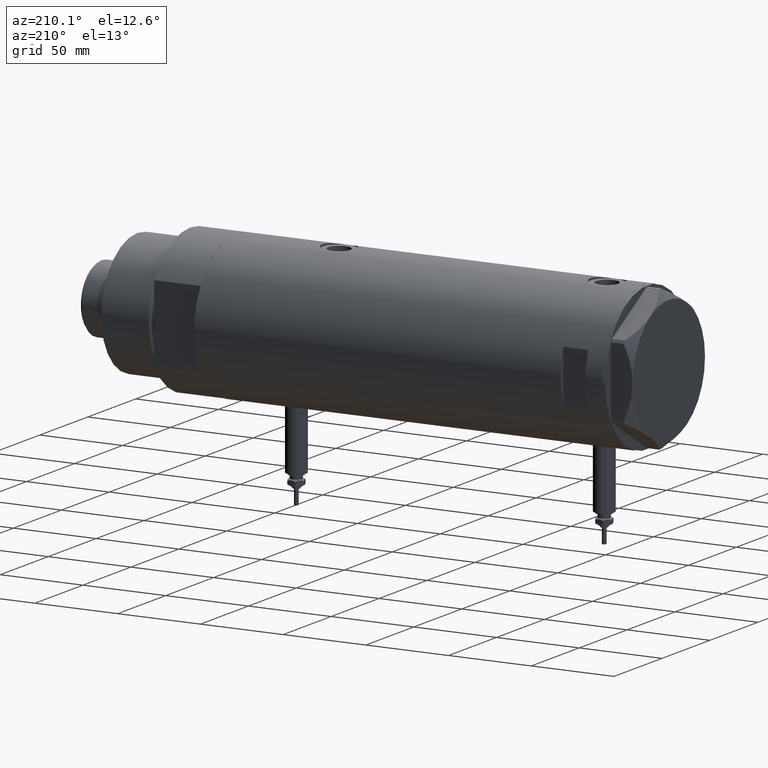
[diagram: clean part render]
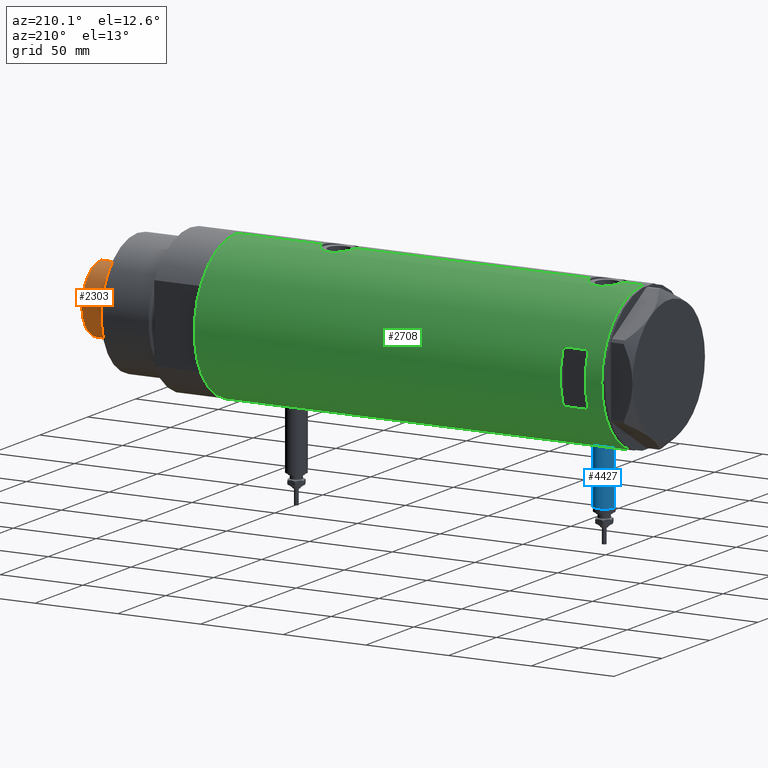
[diagram: same view with three faces highlighted in distinct colors, each labeled with its STEP entity id]
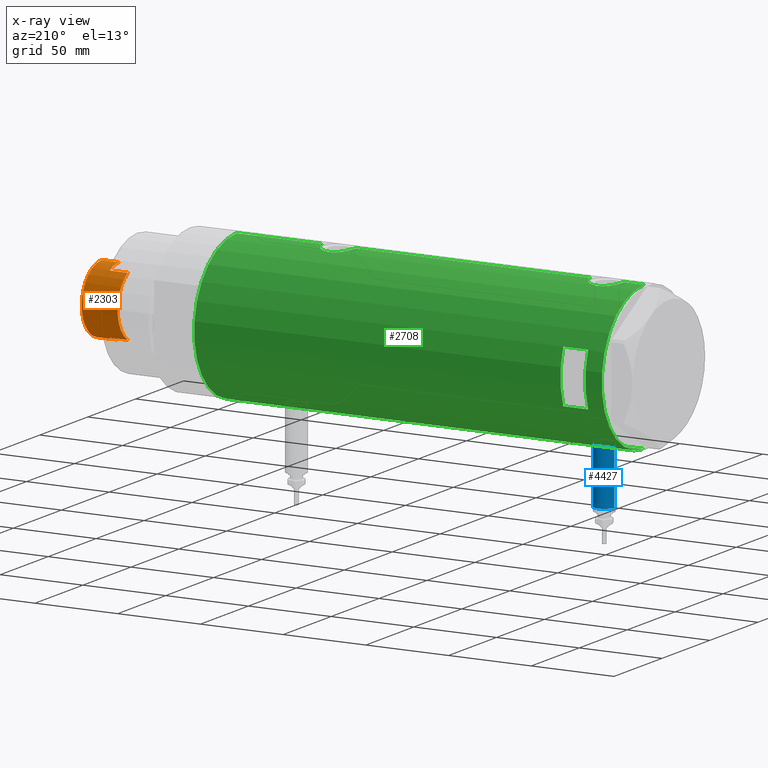
[diagram: x-ray of the same camera — body ghosted, the three highlighted faces saturated]
A machine part, auxiliary view with three faces highlighted in distinct colors.
The next image is the same camera in x-ray (body ghosted, the three faces saturated) — at least one of them is partly hidden behind the body in this view.
Their STEP definitions:

[orange] entity #2303 — the highlighted cylindrical surface (partial cylindrical patch) has radius 20.5 mm, axis along (-1, -0, 0).
#226 = FACE_OUTER_BOUND ( 'NONE', #3237, .T. ) ;
#311 = VERTEX_POINT ( 'NONE', #902 ) ;
#315 = VERTEX_POINT ( 'NONE', #2359 ) ;
#386 = DIRECTION ( 'NONE',  ( 1.000000000000000000, 0.000000000000000000, 0.000000000000000000 ) ) ;
#416 = VECTOR ( 'NONE', #428, 1000.000000000000000 ) ;
#424 = AXIS2_PLACEMENT_3D ( 'NONE', #4688, #3823, #5173 ) ;
#428 = DIRECTION ( 'NONE',  ( -0.000000000000000000, -0.000000000000000000, -1.000000000000000000 ) ) ;
#471 = EDGE_CURVE ( 'NONE', #4297, #4101, #1237, .T. ) ;
#566 = VECTOR ( 'NONE', #3943, 1000.000000000000000 ) ;
#716 = ORIENTED_EDGE ( 'NONE', *, *, #471, .T. ) ;
#853 = EDGE_CURVE ( 'NONE', #4954, #311, #3857, .T. ) ;
#889 = EDGE_CURVE ( 'NONE', #4911, #4297, #4733, .T. ) ;
#902 = CARTESIAN_POINT ( 'NONE',  ( -20.50000000000000000, 0.000000000000000000, 291.3000000000000114 ) ) ;
#1003 = EDGE_CURVE ( 'NONE', #4954, #315, #2392, .T. ) ;
#1036 = ORIENTED_EDGE ( 'NONE', *, *, #1003, .F. ) ;
#1193 = DIRECTION ( 'NONE',  ( 1.000000000000000000, 0.000000000000000000, 0.000000000000000000 ) ) ;
#1237 = LINE ( 'NONE', #3109, #566 ) ;
#1361 = AXIS2_PLACEMENT_3D ( 'NONE', #3376, #4320, #5300 ) ;
#1609 = ORIENTED_EDGE ( 'NONE', *, *, #3963, .F. ) ;
#1768 = CARTESIAN_POINT ( 'NONE',  ( 17.97852886083842705, 9.849999999999997868, 291.3000000000000114 ) ) ;
#1835 = CARTESIAN_POINT ( 'NONE',  ( 20.50000000000000000, 2.510525938252074481E-15, 291.3000000000000114 ) ) ;
#1930 = CIRCLE ( 'NONE', #2919, 20.50000000000000000 ) ;
#2032 = CARTESIAN_POINT ( 'NONE',  ( 17.97852886083842705, 9.849999999999997868, 280.3000000000000114 ) ) ;
#2303 = ADVANCED_FACE ( 'NONE', ( #226 ), #3437, .T. ) ;
#2359 = CARTESIAN_POINT ( 'NONE',  ( -17.97852886083843060, 9.850000000000024514, 280.3000000000000114 ) ) ;
#2392 = LINE ( 'NONE', #5239, #5427 ) ;
#2471 = EDGE_CURVE ( 'NONE', #4101, #4564, #1930, .T. ) ;
#2639 = CARTESIAN_POINT ( 'NONE',  ( 0.000000000000000000, 0.000000000000000000, 291.3000000000000114 ) ) ;
#2702 = CARTESIAN_POINT ( 'NONE',  ( 0.000000000000000000, 0.000000000000000000, 291.3000000000000114 ) ) ;
#2768 = DIRECTION ( 'NONE',  ( 0.000000000000000000, 0.000000000000000000, -1.000000000000000000 ) ) ;
#2919 = AXIS2_PLACEMENT_3D ( 'NONE', #2702, #3088, #1193 ) ;
#3085 = DIRECTION ( 'NONE',  ( 0.000000000000000000, 0.000000000000000000, 1.000000000000000000 ) ) ;
#3088 = DIRECTION ( 'NONE',  ( 0.000000000000000000, 0.000000000000000000, 1.000000000000000000 ) ) ;
#3109 = CARTESIAN_POINT ( 'NONE',  ( 20.50000000000000355, 2.510525938252074481E-15, 291.3000000000000114 ) ) ;
#3237 = EDGE_LOOP ( 'NONE', ( #3803, #716, #3400, #5702, #5886, #1036, #5156, #1609 ) ) ;
#3245 = CARTESIAN_POINT ( 'NONE',  ( 0.000000000000000000, 0.000000000000000000, 301.8999999999999773 ) ) ;
#3272 = LINE ( 'NONE', #4668, #416 ) ;
#3376 = CARTESIAN_POINT ( 'NONE',  ( 0.000000000000000000, 0.000000000000000000, 291.3000000000000114 ) ) ;
#3400 = ORIENTED_EDGE ( 'NONE', *, *, #2471, .T. ) ;
#3437 = CYLINDRICAL_SURFACE ( 'NONE', #1361, 20.50000000000000355 ) ;
#3468 = AXIS2_PLACEMENT_3D ( 'NONE', #3245, #2768, #386 ) ;
#3722 = DIRECTION ( 'NONE',  ( -0.000000000000000000, -0.000000000000000000, -1.000000000000000000 ) ) ;
#3803 = ORIENTED_EDGE ( 'NONE', *, *, #889, .T. ) ;
#3823 = DIRECTION ( 'NONE',  ( 0.000000000000000000, 0.000000000000000000, 1.000000000000000000 ) ) ;
#3857 = CIRCLE ( 'NONE', #5798, 20.50000000000000000 ) ;
#3943 = DIRECTION ( 'NONE',  ( -0.000000000000000000, -0.000000000000000000, -1.000000000000000000 ) ) ;
#3963 = EDGE_CURVE ( 'NONE', #4911, #311, #3272, .T. ) ;
#4101 = VERTEX_POINT ( 'NONE', #1835 ) ;
#4297 = VERTEX_POINT ( 'NONE', #5422 ) ;
#4320 = DIRECTION ( 'NONE',  ( -0.000000000000000000, -0.000000000000000000, -1.000000000000000000 ) ) ;
#4548 = EDGE_CURVE ( 'NONE', #5786, #315, #4765, .T. ) ;
#4564 = VERTEX_POINT ( 'NONE', #5682 ) ;
#4668 = CARTESIAN_POINT ( 'NONE',  ( -20.50000000000000355, 0.000000000000000000, 291.3000000000000114 ) ) ;
#4688 = CARTESIAN_POINT ( 'NONE',  ( 0.000000000000000000, 0.000000000000000000, 280.3000000000000114 ) ) ;
#4733 = CIRCLE ( 'NONE', #3468, 20.50000000000000355 ) ;
#4761 = VECTOR ( 'NONE', #3722, 1000.000000000000000 ) ;
#4765 = CIRCLE ( 'NONE', #424, 20.50000000000001776 ) ;
#4779 = DIRECTION ( 'NONE',  ( -0.000000000000000000, -0.000000000000000000, -1.000000000000000000 ) ) ;
#4805 = DIRECTION ( 'NONE',  ( 1.000000000000000000, 0.000000000000000000, 0.000000000000000000 ) ) ;
#4911 = VERTEX_POINT ( 'NONE', #5004 ) ;
#4954 = VERTEX_POINT ( 'NONE', #5854 ) ;
#5004 = CARTESIAN_POINT ( 'NONE',  ( -20.50000000000000355, 0.000000000000000000, 301.8999999999999773 ) ) ;
#5156 = ORIENTED_EDGE ( 'NONE', *, *, #853, .T. ) ;
#5173 = DIRECTION ( 'NONE',  ( 1.000000000000000000, 0.000000000000000000, 0.000000000000000000 ) ) ;
#5239 = CARTESIAN_POINT ( 'NONE',  ( -17.97852886083842705, 9.849999999999997868, 291.3000000000000114 ) ) ;
#5300 = DIRECTION ( 'NONE',  ( -1.000000000000000000, 0.000000000000000000, 0.000000000000000000 ) ) ;
#5327 = EDGE_CURVE ( 'NONE', #4564, #5786, #5600, .T. ) ;
#5422 = CARTESIAN_POINT ( 'NONE',  ( 20.50000000000000355, 2.510525938252074481E-15, 301.8999999999999773 ) ) ;
#5427 = VECTOR ( 'NONE', #4779, 1000.000000000000000 ) ;
#5600 = LINE ( 'NONE', #1768, #4761 ) ;
#5682 = CARTESIAN_POINT ( 'NONE',  ( 17.97852886083842705, 9.849999999999997868, 291.3000000000000114 ) ) ;
#5702 = ORIENTED_EDGE ( 'NONE', *, *, #5327, .T. ) ;
#5786 = VERTEX_POINT ( 'NONE', #2032 ) ;
#5798 = AXIS2_PLACEMENT_3D ( 'NONE', #2639, #3085, #4805 ) ;
#5854 = CARTESIAN_POINT ( 'NONE',  ( -17.97852886083842705, 9.849999999999997868, 291.3000000000000114 ) ) ;
#5886 = ORIENTED_EDGE ( 'NONE', *, *, #4548, .T. ) ;

[blue] entity #4427 — the highlighted cylindrical surface (edge-blend (fillet) strip) has radius 6 mm, axis along (0, 0, 1).
#6 = CARTESIAN_POINT ( 'NONE',  ( -77.50000000000000000, 7.347880794884101001E-16, 105.2000000000000028 ) ) ;
#13 = CYLINDRICAL_SURFACE ( 'NONE', #5262, 5.999999999999991118 ) ;
#154 = VERTEX_POINT ( 'NONE', #4478 ) ;
#399 = EDGE_CURVE ( 'NONE', #154, #1180, #4311, .T. ) ;
#412 = CARTESIAN_POINT ( 'NONE',  ( -42.79999999999999716, 0.000000000000000000, 93.20000000000001705 ) ) ;
#506 = CIRCLE ( 'NONE', #3308, 5.999999999999991118 ) ;
#543 = VERTEX_POINT ( 'NONE', #6 ) ;
#1100 = CARTESIAN_POINT ( 'NONE',  ( -77.50000000000000000, 0.000000000000000000, 99.20000000000001705 ) ) ;
#1180 = VERTEX_POINT ( 'NONE', #412 ) ;
#1339 = FACE_OUTER_BOUND ( 'NONE', #4435, .T. ) ;
#1420 = EDGE_CURVE ( 'NONE', #3070, #1180, #5807, .T. ) ;
#1427 = VECTOR ( 'NONE', #1543, 1000.000000000000000 ) ;
#1543 = DIRECTION ( 'NONE',  ( 1.000000000000000000, -0.000000000000000000, -0.000000000000000000 ) ) ;
#1556 = DIRECTION ( 'NONE',  ( -1.000000000000000000, 0.000000000000000000, 0.000000000000000000 ) ) ;
#1858 = CARTESIAN_POINT ( 'NONE',  ( -77.50000000000000000, 0.000000000000000000, 99.20000000000001705 ) ) ;
#2063 = VECTOR ( 'NONE', #3668, 1000.000000000000000 ) ;
#2337 = CARTESIAN_POINT ( 'NONE',  ( -77.50000000000000000, 7.347880794884104945E-16, 105.2000000000000028 ) ) ;
#2667 = CARTESIAN_POINT ( 'NONE',  ( -42.79999999999999716, 0.000000000000000000, 99.20000000000001705 ) ) ;
#3052 = DIRECTION ( 'NONE',  ( -1.000000000000000000, 0.000000000000000000, 0.000000000000000000 ) ) ;
#3070 = VERTEX_POINT ( 'NONE', #4327 ) ;
#3308 = AXIS2_PLACEMENT_3D ( 'NONE', #1100, #1556, #3412 ) ;
#3412 = DIRECTION ( 'NONE',  ( 0.000000000000000000, 0.000000000000000000, 1.000000000000000000 ) ) ;
#3426 = CARTESIAN_POINT ( 'NONE',  ( -77.50000000000000000, 0.000000000000000000, 93.20000000000001705 ) ) ;
#3555 = DIRECTION ( 'NONE',  ( 0.000000000000000000, 0.000000000000000000, 1.000000000000000000 ) ) ;
#3633 = EDGE_CURVE ( 'NONE', #543, #154, #506, .T. ) ;
#3661 = ORIENTED_EDGE ( 'NONE', *, *, #5015, .T. ) ;
#3668 = DIRECTION ( 'NONE',  ( 1.000000000000000000, -0.000000000000000000, -0.000000000000000000 ) ) ;
#3687 = DIRECTION ( 'NONE',  ( 1.000000000000000000, -0.000000000000000000, -0.000000000000000000 ) ) ;
#3750 = ORIENTED_EDGE ( 'NONE', *, *, #399, .F. ) ;
#3767 = AXIS2_PLACEMENT_3D ( 'NONE', #2667, #3052, #3555 ) ;
#3876 = ORIENTED_EDGE ( 'NONE', *, *, #1420, .T. ) ;
#4311 = LINE ( 'NONE', #3426, #1427 ) ;
#4327 = CARTESIAN_POINT ( 'NONE',  ( -42.79999999999999716, 7.347880794884101001E-16, 105.2000000000000028 ) ) ;
#4427 = ADVANCED_FACE ( 'NONE', ( #1339 ), #13, .T. ) ;
#4435 = EDGE_LOOP ( 'NONE', ( #5573, #3661, #3876, #3750 ) ) ;
#4478 = CARTESIAN_POINT ( 'NONE',  ( -77.50000000000000000, 0.000000000000000000, 93.20000000000001705 ) ) ;
#4537 = DIRECTION ( 'NONE',  ( 0.000000000000000000, 0.000000000000000000, -1.000000000000000000 ) ) ;
#4617 = LINE ( 'NONE', #2337, #2063 ) ;
#5015 = EDGE_CURVE ( 'NONE', #543, #3070, #4617, .T. ) ;
#5262 = AXIS2_PLACEMENT_3D ( 'NONE', #1858, #3687, #4537 ) ;
#5573 = ORIENTED_EDGE ( 'NONE', *, *, #3633, .F. ) ;
#5807 = CIRCLE ( 'NONE', #3767, 5.999999999999991118 ) ;

[green] entity #2708 — the highlighted cylindrical surface (partial cylindrical patch) has radius 44 mm, axis along (-1, -0, 0).
#15 = CARTESIAN_POINT ( 'NONE',  ( 43.04663170950395568, 9.110642017076084898, -65.23547502190393743 ) ) ;
#37 = CARTESIAN_POINT ( 'NONE',  ( 43.27871541412904577, 7.937063204555986573, 106.9917499724603118 ) ) ;
#56 = CARTESIAN_POINT ( 'NONE',  ( 15.96871942267132027, 40.99999999999999289, 98.19999999999998863 ) ) ;
#153 = EDGE_CURVE ( 'NONE', #5284, #2802, #3946, .T. ) ;
#165 = CARTESIAN_POINT ( 'NONE',  ( -43.55963022497232373, 6.210088036293395675, -86.08353836982578855 ) ) ;
#199 = CARTESIAN_POINT ( 'NONE',  ( -43.62981559643959883, 5.696090409300652802, -89.48051365414525549 ) ) ;
#209 = DIRECTION ( 'NONE',  ( 1.000000000000000000, 0.000000000000000000, 0.000000000000000000 ) ) ;
#224 = CARTESIAN_POINT ( 'NONE',  ( 43.27822890220282659, 7.945655169171512711, -67.20725383289290278 ) ) ;
#232 = CARTESIAN_POINT ( 'NONE',  ( -43.58221825186232223, 6.049526113783018744, -88.52262970817959342 ) ) ;
#250 = CARTESIAN_POINT ( 'NONE',  ( -43.83593455218809254, 3.811409182021277431, 104.1701492770349944 ) ) ;
#262 = CARTESIAN_POINT ( 'NONE',  ( -43.88968326835894374, 3.132363423941621594, -81.47620767643522299 ) ) ;
#282 = CARTESIAN_POINT ( 'NONE',  ( 43.98503110884232825, 1.314607393679875447, -71.03470984345554484 ) ) ;
#303 = VERTEX_POINT ( 'NONE', #3244 ) ;
#310 = B_SPLINE_CURVE_WITH_KNOTS ( 'NONE', 3,
 ( #794, #3977, #5383, #1208, #3074, #4916, #2165, #4009, #1693, #2662, #5111, #4532, #4195, #1365, #5992, #371, #4110, #5928, #2229, #826, #5481, #493, #5016, #4560, #1756, #3622, #944, #855, #2690, #1304, #4070, #3172, #1396, #4600, #37, #441, #1272, #2717, #2752, #3145, #409, #2263, #2294, #1818, #1850, #5962, #4138, #1792, #3650, #5508 ),
 .UNSPECIFIED., .F., .F.,
 ( 4, 2, 2, 2, 2, 2, 2, 2, 2, 2, 2, 2, 2, 2, 2, 2, 2, 2, 2, 2, 2, 2, 2, 2, 4 ),
 ( 2.058272752699468799E-18, 0.001960456513248896686, 0.002940684769873340258, 0.003920913026497782963, 0.005881369539746685721, 0.006861597796371134497, 0.007841826052995583274, 0.009802282566244484296, 0.01078251082286893481, 0.01176273907949338358, 0.01274296733611783236, 0.01372319559274228114, 0.01568365210599118043, 0.01764410861924008145, 0.01960456513248897553, 0.02058479338911340870, 0.02156502164573783492, 0.02254524990236226462, 0.02352547815898669778, 0.02548593467223555370, 0.02646616292885998686, 0.02744639118548441656, 0.02940684769873326901, 0.03038707595535769523, 0.03136730421198211799 ),
 .UNSPECIFIED. ) ;
#314 = EDGE_CURVE ( 'NONE', #2802, #4871, #2767, .T. ) ;
#316 = CARTESIAN_POINT ( 'NONE',  ( -43.97181775256600389, 1.624866278047415236, 93.15107081614905837 ) ) ;
#318 = CARTESIAN_POINT ( 'NONE',  ( 43.77939001959706644, 4.442287752090380515, -70.08306177559164496 ) ) ;
#348 = CARTESIAN_POINT ( 'NONE',  ( -43.67867890111967455, 5.309046579850785541, 95.89577220923976597 ) ) ;
#371 = CARTESIAN_POINT ( 'NONE',  ( 43.17277162440353777, 8.493905080221257009, 95.61212964891504384 ) ) ;
#409 = CARTESIAN_POINT ( 'NONE',  ( 43.71454618729809027, 5.012329428678966359, 109.5593697405831080 ) ) ;
#421 = CARTESIAN_POINT ( 'NONE',  ( 42.92624534982631701, 9.661626915142809580, -63.70008004144708735 ) ) ;
#441 = CARTESIAN_POINT ( 'NONE',  ( 43.35257020184193522, 7.523219862841655114, 107.4960255408414014 ) ) ;
#493 = CARTESIAN_POINT ( 'NONE',  ( 42.92624534982632412, 9.661626915142806027, 98.29991995855294817 ) ) ;
#503 = DIRECTION ( 'NONE',  ( 0.000000000000000000, 0.000000000000000000, 1.000000000000000000 ) ) ;
#525 = DIRECTION ( 'NONE',  ( 1.000000000000000000, -8.881784197001252323E-16, 0.000000000000000000 ) ) ;
#542 = EDGE_CURVE ( 'NONE', #3205, #2965, #1367, .T. ) ;
#567 = CARTESIAN_POINT ( 'NONE',  ( -44.00000000000000000, 5.388445781982983516E-15, -93.15000000000000568 ) ) ;
#627 = CARTESIAN_POINT ( 'NONE',  ( -44.00000000000000000, 4.742402805755500961E-16, -80.65000000000000568 ) ) ;
#650 = EDGE_CURVE ( 'NONE', #3060, #4871, #3952, .T. ) ;
#654 = CARTESIAN_POINT ( 'NONE',  ( -43.97068415157985299, 1.617901284326947575, -80.85954871699956925 ) ) ;
#687 = CARTESIAN_POINT ( 'NONE',  ( -43.67867890111967455, 5.309046579850785541, -90.20422779076022834 ) ) ;
#709 = CARTESIAN_POINT ( 'NONE',  ( -43.58362292239462477, 6.039157555656595733, 100.8226357844804113 ) ) ;
#722 = CARTESIAN_POINT ( 'NONE',  ( -44.00000000000000711, 0.4081702738789186879, -93.15000000000003411 ) ) ;
#736 = CARTESIAN_POINT ( 'NONE',  ( -43.91315028150560096, 2.769134003554746482, 93.59317380624592886 ) ) ;
#739 = CARTESIAN_POINT ( 'NONE',  ( 44.00000000000001421, 0.6630566900259821095, -71.10000000000000853 ) ) ;
#761 = CARTESIAN_POINT ( 'NONE',  ( 44.00000000000000000, 0.000000000000000000, 123.2000000000000028 ) ) ;
#768 = CARTESIAN_POINT ( 'NONE',  ( -43.71938389712227746, 4.966728892888062852, 103.0161445234087125 ) ) ;
#771 = CARTESIAN_POINT ( 'NONE',  ( 0.000000000000000000, 0.000000000000000000, -123.2000000000000028 ) ) ;
#786 = LINE ( 'NONE', #1711, #4758 ) ;
#794 = CARTESIAN_POINT ( 'NONE',  ( 44.00000000000000000, -2.119006702872526837E-15, 90.90000000000000568 ) ) ;
#826 = CARTESIAN_POINT ( 'NONE',  ( 42.99303682946561622, 9.360292926890508625, 97.36575779792795515 ) ) ;
#833 = CARTESIAN_POINT ( 'NONE',  ( 43.46520118248734121, 6.843279251446917399, -68.39898327212166862 ) ) ;
#834 = DIRECTION ( 'NONE',  ( 1.000000000000000000, 0.000000000000000000, 0.000000000000000000 ) ) ;
#855 = CARTESIAN_POINT ( 'NONE',  ( 42.92259096922160921, 9.678247830257125983, 103.5000599302879607 ) ) ;
#858 = ORIENTED_EDGE ( 'NONE', *, *, #542, .F. ) ;
#863 = CARTESIAN_POINT ( 'NONE',  ( 42.90786968859021044, 9.742642423712169375, -63.37802296547128122 ) ) ;
#900 = CARTESIAN_POINT ( 'NONE',  ( 43.07641822757288708, 8.969229373860574839, -56.66603764209828853 ) ) ;
#930 = CARTESIAN_POINT ( 'NONE',  ( 43.92756755766649235, 2.604528169608125499, -51.42286588097656619 ) ) ;
#944 = CARTESIAN_POINT ( 'NONE',  ( 42.86396777580257833, 9.934664719553396139, 102.2157619902652073 ) ) ;
#952 = CARTESIAN_POINT ( 'NONE',  ( 43.88561577393361546, 3.228056721358716796, -51.61278334272175528 ) ) ;
#979 = CARTESIAN_POINT ( 'NONE',  ( 42.84863276153905787, 9.999733523508368194, -61.75869904750779682 ) ) ;
#1062 = LINE ( 'NONE', #4257, #2548 ) ;
#1102 = CARTESIAN_POINT ( 'NONE',  ( -43.66555354895123742, 5.415612800338316823, -83.77343642822442860 ) ) ;
#1115 = CARTESIAN_POINT ( 'NONE',  ( -43.97754480947185129, 1.419697478855583617, 105.2900327605207167 ) ) ;
#1126 = CARTESIAN_POINT ( 'NONE',  ( -44.00000000000000000, 0.4135148353567997814, -80.65000000000000568 ) ) ;
#1160 = CARTESIAN_POINT ( 'NONE',  ( -43.97181775256598257, 1.624866278047412571, -92.94892918385093594 ) ) ;
#1167 = AXIS2_PLACEMENT_3D ( 'NONE', #2842, #4687, #525 ) ;
#1175 = CARTESIAN_POINT ( 'NONE',  ( -44.00000000000000000, 5.388445916248352830E-15, -123.2000000000000028 ) ) ;
#1185 = CARTESIAN_POINT ( 'NONE',  ( -43.80687348212602217, 4.128385987736833407, 94.48951256689039724 ) ) ;
#1199 = CARTESIAN_POINT ( 'NONE',  ( -43.80687348212602217, 4.128385987736835183, -91.61048743310965392 ) ) ;
#1208 = CARTESIAN_POINT ( 'NONE',  ( 43.94229162222109863, 2.275476993733910103, 91.15685535777693360 ) ) ;
#1214 = CARTESIAN_POINT ( 'NONE',  ( -43.74805001749254529, 4.711035428619386956, 95.07223935874202425 ) ) ;
#1231 = CARTESIAN_POINT ( 'NONE',  ( 44.00000000000000000, -3.917167710965456221E-21, -51.10000000000000853 ) ) ;
#1233 = EDGE_CURVE ( 'NONE', #5977, #2999, #2064, .T. ) ;
#1243 = CARTESIAN_POINT ( 'NONE',  ( -44.00000000000000000, 5.388445781982983516E-15, 92.95000000000000284 ) ) ;
#1262 = DIRECTION ( 'NONE',  ( 0.000000000000000000, 0.000000000000000000, 1.000000000000000000 ) ) ;
#1272 = CARTESIAN_POINT ( 'NONE',  ( 43.39051256276904667, 7.301963662770313945, 107.7402446821294433 ) ) ;
#1304 = CARTESIAN_POINT ( 'NONE',  ( 43.04652664061921286, 9.111152824375427173, 105.0345800921459016 ) ) ;
#1341 = CARTESIAN_POINT ( 'NONE',  ( 43.13962074468733476, 8.660138848900679420, -56.08910258836065310 ) ) ;
#1365 = CARTESIAN_POINT ( 'NONE',  ( 43.35294442506074830, 7.532526048221051873, 94.29064585508892549 ) ) ;
#1367 = LINE ( 'NONE', #4562, #5314 ) ;
#1377 = CARTESIAN_POINT ( 'NONE',  ( 44.00000000000000000, -3.917167710965456221E-21, -51.10000000000000853 ) ) ;
#1396 = CARTESIAN_POINT ( 'NONE',  ( 43.17306590853067405, 8.492365194390515626, 106.1901253269346057 ) ) ;
#1406 = CARTESIAN_POINT ( 'NONE',  ( 43.80640706382534688, 4.134078575915398623, -51.98867178437912884 ) ) ;
#1457 = AXIS2_PLACEMENT_3D ( 'NONE', #1941, #2874, #2409 ) ;
#1494 = ORIENTED_EDGE ( 'NONE', *, *, #4161, .T. ) ;
#1515 = VERTEX_POINT ( 'NONE', #1231 ) ;
#1589 = CARTESIAN_POINT ( 'NONE',  ( -43.66575107734169592, 5.414026674167576658, -90.02935088037700950 ) ) ;
#1604 = CARTESIAN_POINT ( 'NONE',  ( -43.62981559643959883, 5.696090409300652802, 96.61948634585476725 ) ) ;
#1616 = CARTESIAN_POINT ( 'NONE',  ( -43.91315028150560096, 2.769134003554747814, -92.50682619375403704 ) ) ;
#1638 = CARTESIAN_POINT ( 'NONE',  ( -44.00000000000000711, 0.4135148353567996149, 105.4500000000000028 ) ) ;
#1671 = CARTESIAN_POINT ( 'NONE',  ( -43.61859254253774054, 5.782454868881351295, 101.5978640089446827 ) ) ;
#1685 = CARTESIAN_POINT ( 'NONE',  ( -15.96871942267131672, 40.99999999999999289, 98.19999999999998863 ) ) ;
#1686 = B_SPLINE_CURVE_WITH_KNOTS ( 'NONE', 3,
 ( #3055, #739, #282, #4862, #2139, #5841, #4477, #318, #5902, #3592, #5454, #4994, #833, #2696, #224, #2078, #3923, #5059, #15, #1860, #4081, #421, #863, #4148, #979, #2358, #2302, #3241, #4204, #5094, #900, #1341, #5550, #1801, #2726, #6001, #3181, #2328, #3659, #4118, #3289, #2765, #1406, #952, #930, #2274, #5516, #2817, #3211, #1377 ),
 .UNSPECIFIED., .F., .F.,
 ( 4, 2, 2, 2, 2, 2, 2, 2, 2, 2, 2, 2, 2, 2, 2, 2, 2, 2, 2, 2, 2, 2, 2, 2, 4 ),
 ( 1.692956015708611541E-18, 0.001960456513248875435, 0.002940684769873316406, 0.003920913026497757810, 0.005881369539746623271, 0.006861597796371055567, 0.007841826052995486129, 0.009802282566244380213, 0.01078251082286882552, 0.01176273907949326736, 0.01274296733611771093, 0.01372319559274215450, 0.01568365210599102083, 0.01764410861923988716, 0.01960456513248875349, 0.02058479338911319706, 0.02156502164573764410, 0.02254524990236208420, 0.02352547815898652778, 0.02548593467223542880, 0.02646616292885988278, 0.02744639118548432982, 0.02940684769873323431, 0.03038707595535768483, 0.03136730421198213187 ),
 .UNSPECIFIED. ) ;
#1693 = CARTESIAN_POINT ( 'NONE',  ( 43.71659050864931828, 5.015880325000606099, 92.22433174036179082 ) ) ;
#1711 = CARTESIAN_POINT ( 'NONE',  ( 44.00000000000000000, 0.000000000000000000, -123.2000000000000028 ) ) ;
#1756 = CARTESIAN_POINT ( 'NONE',  ( 42.84863276153906497, 9.999733523508362865, 100.2413009524922529 ) ) ;
#1757 = CIRCLE ( 'NONE', #1167, 44.00000000000000000 ) ;
#1790 = ORIENTED_EDGE ( 'NONE', *, *, #4269, .T. ) ;
#1792 = CARTESIAN_POINT ( 'NONE',  ( 43.99635668041006653, 0.6544833911834598839, 110.8840070847753481 ) ) ;
#1801 = CARTESIAN_POINT ( 'NONE',  ( 43.24261242176996234, 8.130827601038836505, -55.26944813145832569 ) ) ;
#1818 = CARTESIAN_POINT ( 'NONE',  ( 43.88561577393360125, 3.228056721358715020, 110.3872166572782589 ) ) ;
#1850 = CARTESIAN_POINT ( 'NONE',  ( 43.92756755766649945, 2.604528169608117505, 110.5771341190234693 ) ) ;
#1860 = CARTESIAN_POINT ( 'NONE',  ( 42.99303682946562333, 9.360292926890508625, -64.63424220207204485 ) ) ;
#1917 = CARTESIAN_POINT ( 'NONE',  ( -44.00000000000000000, 5.388445916248352830E-15, -123.2000000000000028 ) ) ;
#1941 = CARTESIAN_POINT ( 'NONE',  ( 0.000000000000000000, 0.000000000000000000, 98.20000000000017337 ) ) ;
#1944 = ORIENTED_EDGE ( 'NONE', *, *, #5995, .F. ) ;
#1950 = DIRECTION ( 'NONE',  ( 0.000000000000000000, 0.000000000000000000, 1.000000000000000000 ) ) ;
#1970 = CYLINDRICAL_SURFACE ( 'NONE', #4571, 44.00000000000000000 ) ;
#1990 = CARTESIAN_POINT ( 'NONE',  ( -43.94507179847653333, 2.206027755801677870, -81.04868477718204645 ) ) ;
#2021 = CARTESIAN_POINT ( 'NONE',  ( -43.55386785759471735, 6.249847571481741859, -86.48945052382046583 ) ) ;
#2023 = VECTOR ( 'NONE', #4304, 1000.000000000000000 ) ;
#2054 = CARTESIAN_POINT ( 'NONE',  ( -43.64133398152736021, 5.607447751852152606, -89.66786045012436546 ) ) ;
#2064 = LINE ( 'NONE', #4792, #2023 ) ;
#2067 = CARTESIAN_POINT ( 'NONE',  ( 15.96871942267132027, 40.99999999999999289, 113.1999999999999886 ) ) ;
#2075 = CARTESIAN_POINT ( 'NONE',  ( -43.55963022497231663, 6.210088036293396563, 100.0164616301742342 ) ) ;
#2078 = CARTESIAN_POINT ( 'NONE',  ( 43.17277162440353777, 8.493905080221258785, -66.38787035108495616 ) ) ;
#2102 = CARTESIAN_POINT ( 'NONE',  ( -43.80646232387288563, 4.132500855894024383, 103.9064558540335668 ) ) ;
#2139 = CARTESIAN_POINT ( 'NONE',  ( 43.92466059386729427, 2.593004216484781743, -70.76356669671353927 ) ) ;
#2165 = CARTESIAN_POINT ( 'NONE',  ( 43.85884410404901246, 3.534688330930384037, 91.53980191249665666 ) ) ;
#2170 = CARTESIAN_POINT ( 'NONE',  ( -43.99413512814552263, 0.8228129877960650429, 92.99091685674176233 ) ) ;
#2202 = CARTESIAN_POINT ( 'NONE',  ( -43.88883895882799635, 3.130924084324101297, 93.78687544251855002 ) ) ;
#2221 = AXIS2_PLACEMENT_3D ( 'NONE', #771, #2637, #834 ) ;
#2225 = ORIENTED_EDGE ( 'NONE', *, *, #2524, .F. ) ;
#2229 = CARTESIAN_POINT ( 'NONE',  ( 43.04663170950397699, 9.110642017076083121, 96.76452497809609099 ) ) ;
#2263 = CARTESIAN_POINT ( 'NONE',  ( 43.77712723341633705, 4.432620652875505662, 109.8699500975997694 ) ) ;
#2274 = CARTESIAN_POINT ( 'NONE',  ( 43.97062489912107708, 1.639461988184805596, -51.22985373334016401 ) ) ;
#2282 = CARTESIAN_POINT ( 'NONE',  ( 44.00000000000000000, 0.000000000000000000, -123.2000000000000028 ) ) ;
#2294 = CARTESIAN_POINT ( 'NONE',  ( 43.80640706382535399, 4.134078575915391518, 110.0113282156209067 ) ) ;
#2302 = CARTESIAN_POINT ( 'NONE',  ( 42.86396777580258544, 9.934664719553399692, -59.78423800973479985 ) ) ;
#2328 = CARTESIAN_POINT ( 'NONE',  ( 43.50382207688845426, 6.605942769308313700, -53.56395311161780626 ) ) ;
#2348 = DIRECTION ( 'NONE',  ( 0.000000000000000000, 0.000000000000000000, 1.000000000000000000 ) ) ;
#2358 = CARTESIAN_POINT ( 'NONE',  ( 42.84850876528982866, 10.00026482975808406, -60.44941694529579479 ) ) ;
#2409 = DIRECTION ( 'NONE',  ( 0.000000000000000000, 1.000000000000000000, -4.731064025391292434E-15 ) ) ;
#2443 = CIRCLE ( 'NONE', #1457, 44.00000000000000000 ) ;
#2487 = CARTESIAN_POINT ( 'NONE',  ( -43.64122538274736485, 5.608286354294323317, -84.13388613036659081 ) ) ;
#2488 = EDGE_LOOP ( 'NONE', ( #3258, #4361, #5304, #1494, #3905, #1790, #2225, #5848, #1944, #2778, #5966, #2860 ) ) ;
#2514 = CARTESIAN_POINT ( 'NONE',  ( -43.55382423478828713, 6.250151562062088217, -87.30589529487342304 ) ) ;
#2524 = EDGE_CURVE ( 'NONE', #2914, #3111, #3482, .T. ) ;
#2548 = VECTOR ( 'NONE', #1950, 1000.000000000000000 ) ;
#2551 = CARTESIAN_POINT ( 'NONE',  ( -43.74805001749255950, 4.711035428619389620, -91.02776064125801270 ) ) ;
#2568 = CARTESIAN_POINT ( 'NONE',  ( -43.64133398152736021, 5.607447751852152606, 96.43213954987568570 ) ) ;
#2575 = DIRECTION ( 'NONE',  ( 1.000000000000000000, 0.000000000000000000, 0.000000000000000000 ) ) ;
#2580 = CARTESIAN_POINT ( 'NONE',  ( -43.71901936021023971, 4.969830049220627544, -90.71167637698874842 ) ) ;
#2598 = CARTESIAN_POINT ( 'NONE',  ( -43.64122538274737195, 5.608286354294323317, 101.9661138696334177 ) ) ;
#2605 = EDGE_CURVE ( 'NONE', #1515, #4926, #5521, .T. ) ;
#2633 = CARTESIAN_POINT ( 'NONE',  ( -43.55386785759471024, 6.249847571481740971, 99.61054947617954269 ) ) ;
#2637 = DIRECTION ( 'NONE',  ( 0.000000000000000000, 0.000000000000000000, 1.000000000000000000 ) ) ;
#2662 = CARTESIAN_POINT ( 'NONE',  ( 43.61291203895920887, 5.829986172017921575, 92.76871289213168836 ) ) ;
#2690 = CARTESIAN_POINT ( 'NONE',  ( 42.96547725528407824, 9.488625330801083280, 104.1245034721107459 ) ) ;
#2696 = CARTESIAN_POINT ( 'NONE',  ( 43.35294442506074830, 7.532526048221051873, -67.70935414491114557 ) ) ;
#2708 = ADVANCED_FACE ( 'NONE', ( #3791, #5654 ), #1970, .T. ) ;
#2717 = CARTESIAN_POINT ( 'NONE',  ( 43.50382207688845426, 6.605942769308304818, 108.4360468883821937 ) ) ;
#2726 = CARTESIAN_POINT ( 'NONE',  ( 43.27871541412903866, 7.937063204555983020, -55.00825002753968107 ) ) ;
#2733 = LINE ( 'NONE', #2282, #2748 ) ;
#2748 = VECTOR ( 'NONE', #3959, 1000.000000000000000 ) ;
#2752 = CARTESIAN_POINT ( 'NONE',  ( 43.57805684119163203, 6.103282219787162788, 108.8481620164785824 ) ) ;
#2765 = CARTESIAN_POINT ( 'NONE',  ( 43.77712723341632994, 4.432620652875510991, -52.13004990240029457 ) ) ;
#2767 = LINE ( 'NONE', #4609, #4243 ) ;
#2778 = ORIENTED_EDGE ( 'NONE', *, *, #2605, .F. ) ;
#2791 = ORIENTED_EDGE ( 'NONE', *, *, #1233, .F. ) ;
#2802 = VERTEX_POINT ( 'NONE', #1175 ) ;
#2817 = CARTESIAN_POINT ( 'NONE',  ( 43.99635668041007364, 0.6544833911834621043, -51.11599291522471589 ) ) ;
#2842 = CARTESIAN_POINT ( 'NONE',  ( 0.000000000000000000, 0.000000000000000000, 113.1999999999999886 ) ) ;
#2860 = ORIENTED_EDGE ( 'NONE', *, *, #3298, .F. ) ;
#2874 = DIRECTION ( 'NONE',  ( 0.000000000000000000, 4.625929269271481378E-15, 1.000000000000000000 ) ) ;
#2914 = VERTEX_POINT ( 'NONE', #761 ) ;
#2931 = VECTOR ( 'NONE', #4802, 1000.000000000000000 ) ;
#2953 = DIRECTION ( 'NONE',  ( 0.000000000000000000, 0.000000000000000000, 1.000000000000000000 ) ) ;
#2965 = VERTEX_POINT ( 'NONE', #3260 ) ;
#2998 = CARTESIAN_POINT ( 'NONE',  ( -43.74833112883975872, 4.708208586951999841, -82.76949616491121731 ) ) ;
#2999 = VERTEX_POINT ( 'NONE', #56 ) ;
#3018 = CARTESIAN_POINT ( 'NONE',  ( 44.00000000000000000, 0.000000000000000000, -123.2000000000000028 ) ) ;
#3025 = DIRECTION ( 'NONE',  ( 0.000000000000000000, 0.000000000000000000, 1.000000000000000000 ) ) ;
#3033 = CARTESIAN_POINT ( 'NONE',  ( -43.99413512814553684, 0.8228129877960669303, -93.10908314325824620 ) ) ;
#3049 = ORIENTED_EDGE ( 'NONE', *, *, #5456, .F. ) ;
#3053 = CARTESIAN_POINT ( 'NONE',  ( -43.87596296923810968, 3.305851531861728976, 93.89196414123738066 ) ) ;
#3055 = CARTESIAN_POINT ( 'NONE',  ( 44.00000000000000000, -1.742910476879209922E-15, -71.10000000000000853 ) ) ;
#3060 = VERTEX_POINT ( 'NONE', #3818 ) ;
#3074 = CARTESIAN_POINT ( 'NONE',  ( 43.92466059386729427, 2.593004216484782187, 91.23643330328644652 ) ) ;
#3080 = CARTESIAN_POINT ( 'NONE',  ( -43.95549163632549750, 2.014511215452028381, 93.26941044295023175 ) ) ;
#3111 = VERTEX_POINT ( 'NONE', #4759 ) ;
#3145 = CARTESIAN_POINT ( 'NONE',  ( 43.68141895191831736, 5.292250119194733315, 109.3910495228519437 ) ) ;
#3172 = CARTESIAN_POINT ( 'NONE',  ( 43.13962074468734897, 8.660138848900674091, 105.9108974116393398 ) ) ;
#3181 = CARTESIAN_POINT ( 'NONE',  ( 43.39051256276902535, 7.301963662770319274, -54.25975531787057804 ) ) ;
#3205 = VERTEX_POINT ( 'NONE', #1685 ) ;
#3211 = CARTESIAN_POINT ( 'NONE',  ( 44.00000000000002132, 0.3269372501759426064, -51.10000000000002274 ) ) ;
#3241 = CARTESIAN_POINT ( 'NONE',  ( 42.92259096922160211, 9.678247830257134865, -58.49994006971208904 ) ) ;
#3244 = CARTESIAN_POINT ( 'NONE',  ( 44.00000000000000000, -1.742910476879209922E-15, -71.10000000000000853 ) ) ;
#3258 = ORIENTED_EDGE ( 'NONE', *, *, #153, .T. ) ;
#3260 = CARTESIAN_POINT ( 'NONE',  ( -15.96871942267132027, 40.99999999999999289, 113.1999999999999886 ) ) ;
#3289 = CARTESIAN_POINT ( 'NONE',  ( 43.71454618729809738, 5.012329428678971688, -52.44063025941691336 ) ) ;
#3298 = EDGE_CURVE ( 'NONE', #5284, #303, #786, .T. ) ;
#3344 = VERTEX_POINT ( 'NONE', #5821 ) ;
#3381 = CARTESIAN_POINT ( 'NONE',  ( -43.83593455218809964, 3.811409182021277431, -81.92985072296499993 ) ) ;
#3440 = CARTESIAN_POINT ( 'NONE',  ( -43.99417607942193342, 0.8200150578638748522, -80.69063327483259229 ) ) ;
#3457 = CARTESIAN_POINT ( 'NONE',  ( -43.88968326835893663, 3.132363423941621150, 104.6237923235648140 ) ) ;
#3471 = CARTESIAN_POINT ( 'NONE',  ( -43.92459115390706614, 2.581892149020998950, -92.59545827073348789 ) ) ;
#3482 = CIRCLE ( 'NONE', #4667, 44.00000000000000000 ) ;
#3491 = CARTESIAN_POINT ( 'NONE',  ( -43.58221825186232223, 6.049526113783018744, 97.57737029182041510 ) ) ;
#3508 = CARTESIAN_POINT ( 'NONE',  ( -43.58362292239462477, 6.039157555656596621, -85.27736421551961143 ) ) ;
#3528 = CARTESIAN_POINT ( 'NONE',  ( -43.57657963456318839, 6.089610171536606664, 100.6217853958081179 ) ) ;
#3556 = CARTESIAN_POINT ( 'NONE',  ( -43.55973179376100290, 6.209370339246232717, 98.37938232940129524 ) ) ;
#3587 = VECTOR ( 'NONE', #5033, 1000.000000000000000 ) ;
#3592 = CARTESIAN_POINT ( 'NONE',  ( 43.61291203895920887, 5.829986172017924240, -69.23128710786831164 ) ) ;
#3622 = CARTESIAN_POINT ( 'NONE',  ( 42.84850876528982155, 10.00026482975807696, 101.5505830547042336 ) ) ;
#3650 = CARTESIAN_POINT ( 'NONE',  ( 44.00000000000000000, 0.3269372501759406080, 110.8999999999999773 ) ) ;
#3659 = CARTESIAN_POINT ( 'NONE',  ( 43.57805684119164624, 6.103282219787176111, -53.15183798352141764 ) ) ;
#3771 = CARTESIAN_POINT ( 'NONE',  ( 44.00000000000000000, -3.917104602093038540E-21, 110.9000000000000057 ) ) ;
#3791 = FACE_BOUND ( 'NONE', #4595, .T. ) ;
#3795 = EDGE_CURVE ( 'NONE', #4179, #2914, #2733, .T. ) ;
#3818 = CARTESIAN_POINT ( 'NONE',  ( -44.00000000000000000, 4.742402805755500961E-16, -80.65000000000000568 ) ) ;
#3820 = CARTESIAN_POINT ( 'NONE',  ( 0.000000000000000000, 0.000000000000000000, -123.2000000000000028 ) ) ;
#3839 = CARTESIAN_POINT ( 'NONE',  ( -43.91413175532568403, 2.773555030353453521, -81.28415761633259251 ) ) ;
#3871 = CARTESIAN_POINT ( 'NONE',  ( -43.55973179376100290, 6.209370339246232717, -87.72061767059871329 ) ) ;
#3905 = ORIENTED_EDGE ( 'NONE', *, *, #4356, .F. ) ;
#3921 = CARTESIAN_POINT ( 'NONE',  ( -43.59867737633045692, 5.931302618788633296, 97.18750504970115855 ) ) ;
#3923 = CARTESIAN_POINT ( 'NONE',  ( 43.13897484505559277, 8.663345277311661263, -66.10529600060513644 ) ) ;
#3931 = CARTESIAN_POINT ( 'NONE',  ( -43.57657963456318839, 6.089610171536606664, -85.47821460419190487 ) ) ;
#3946 = CIRCLE ( 'NONE', #2221, 44.00000000000000000 ) ;
#3947 = CARTESIAN_POINT ( 'NONE',  ( -43.97068415157983878, 1.617901284326946909, 105.2404512830004535 ) ) ;
#3952 = B_SPLINE_CURVE_WITH_KNOTS ( 'NONE', 3,
 ( #627, #1126, #3440, #5701, #654, #4785, #1990, #3839, #262, #3381, #5758, #2998, #4841, #5280, #1102, #2487, #5247, #4323, #3508, #3931, #165, #2021, #2514, #3871, #232, #4357, #199, #2054, #1589, #687, #2580, #2551, #1199, #4391, #5785, #4877, #1616, #3471, #5335, #1160, #3033, #722, #4420 ),
 .UNSPECIFIED., .F., .F.,
 ( 4, 2, 2, 2, 2, 2, 2, 2, 1, 2, 2, 2, 2, 2, 2, 2, 2, 2, 2, 2, 2, 4 ),
 ( 4.607841239822568942E-19, 0.001222818171749670123, 0.001834227257624505185, 0.002445636343499340247, 0.003668454515249025983, 0.004891272686998712586, 0.006114090858748397889, 0.006725499944623258321, 0.007336909030498117018, 0.007948318116372976583, 0.008559727202247836148, 0.009782545373997515378, 0.01100536354574719808, 0.01222818171749687731, 0.01283959080337173687, 0.01345099988924659470, 0.01467381806099630863, 0.01589663623274602602, 0.01650804531862088559, 0.01711945440449574515, 0.01834227257624546081, 0.01956509074799517994 ),
 .UNSPECIFIED. ) ;
#3959 = DIRECTION ( 'NONE',  ( 0.000000000000000000, 0.000000000000000000, 1.000000000000000000 ) ) ;
#3977 = CARTESIAN_POINT ( 'NONE',  ( 44.00000000000000711, 0.6630566900259819985, 90.90000000000001990 ) ) ;
#4009 = CARTESIAN_POINT ( 'NONE',  ( 43.77939001959704513, 4.442287752090380515, 91.91693822440836925 ) ) ;
#4012 = CARTESIAN_POINT ( 'NONE',  ( -43.99999999999997158, 0.4081702738789199092, 92.94999999999997442 ) ) ;
#4025 = CARTESIAN_POINT ( 'NONE',  ( 44.00000000000000000, -2.119006702872526837E-15, 90.90000000000000568 ) ) ;
#4070 = CARTESIAN_POINT ( 'NONE',  ( 43.07641822757289418, 8.969229373860574839, 105.3339623579017257 ) ) ;
#4081 = CARTESIAN_POINT ( 'NONE',  ( 42.96879251999280314, 9.470609476412112926, -64.32722899941057904 ) ) ;
#4110 = CARTESIAN_POINT ( 'NONE',  ( 43.13897484505559987, 8.663345277311661263, 95.89470399939484935 ) ) ;
#4118 = CARTESIAN_POINT ( 'NONE',  ( 43.68141895191830315, 5.292250119194744862, -52.60895047714806338 ) ) ;
#4138 = CARTESIAN_POINT ( 'NONE',  ( 43.98169492814102455, 1.310824514239772753, 110.8191978038068441 ) ) ;
#4148 = CARTESIAN_POINT ( 'NONE',  ( 42.86370458161098895, 9.935807968041570959, -62.40904550429867470 ) ) ;
#4161 = EDGE_CURVE ( 'NONE', #3060, #4471, #5632, .T. ) ;
#4179 = VERTEX_POINT ( 'NONE', #3771 ) ;
#4195 = CARTESIAN_POINT ( 'NONE',  ( 43.46520118248734832, 6.843279251446915623, 93.60101672787834559 ) ) ;
#4204 = CARTESIAN_POINT ( 'NONE',  ( 42.96547725528407824, 9.488625330801090385, -57.87549652788928967 ) ) ;
#4243 = VECTOR ( 'NONE', #503, 1000.000000000000000 ) ;
#4257 = CARTESIAN_POINT ( 'NONE',  ( -44.00000000000000000, 5.388445916248352830E-15, -123.2000000000000028 ) ) ;
#4269 = EDGE_CURVE ( 'NONE', #3344, #3111, #1062, .T. ) ;
#4304 = DIRECTION ( 'NONE',  ( -0.000000000000000000, -0.000000000000000000, -1.000000000000000000 ) ) ;
#4323 = CARTESIAN_POINT ( 'NONE',  ( -43.59995593514495482, 5.920088975424567579, -84.88582091308219901 ) ) ;
#4356 = EDGE_CURVE ( 'NONE', #3344, #4471, #5258, .T. ) ;
#4357 = CARTESIAN_POINT ( 'NONE',  ( -43.59867737633045692, 5.931302618788633296, -88.91249495029892103 ) ) ;
#4361 = ORIENTED_EDGE ( 'NONE', *, *, #314, .T. ) ;
#4377 = CARTESIAN_POINT ( 'NONE',  ( -43.95446647384543581, 2.010857111636599637, 105.1212422636393882 ) ) ;
#4391 = CARTESIAN_POINT ( 'NONE',  ( -43.83576802966639718, 3.813209221108460945, -91.86865490354712449 ) ) ;
#4420 = CARTESIAN_POINT ( 'NONE',  ( -44.00000000000000000, 5.388445781982983516E-15, -93.15000000000000568 ) ) ;
#4438 = CARTESIAN_POINT ( 'NONE',  ( -43.92459115390705193, 2.581892149020998950, 93.50454172926654905 ) ) ;
#4471 = VERTEX_POINT ( 'NONE', #5023 ) ;
#4475 = CARTESIAN_POINT ( 'NONE',  ( -43.83576802966640429, 3.813209221108459168, 94.23134509645292667 ) ) ;
#4477 = CARTESIAN_POINT ( 'NONE',  ( 43.85884410404901246, 3.534688330930384037, -70.46019808750338598 ) ) ;
#4509 = CARTESIAN_POINT ( 'NONE',  ( -43.55382423478827292, 6.250151562062086441, 98.79410470512661391 ) ) ;
#4532 = CARTESIAN_POINT ( 'NONE',  ( 43.50265731352003939, 6.601850423195591233, 93.38180832701050349 ) ) ;
#4560 = CARTESIAN_POINT ( 'NONE',  ( 42.86370458161097474, 9.935807968041567406, 99.59095449570135372 ) ) ;
#4562 = CARTESIAN_POINT ( 'NONE',  ( -15.96871942267131672, 40.99999999999999289, -123.2000000000000028 ) ) ;
#4571 = AXIS2_PLACEMENT_3D ( 'NONE', #3820, #2953, #209 ) ;
#4595 = EDGE_LOOP ( 'NONE', ( #858, #3049, #2791, #5544 ) ) ;
#4600 = CARTESIAN_POINT ( 'NONE',  ( 43.24261242176994813, 8.130827601038829400, 106.7305518685417383 ) ) ;
#4609 = CARTESIAN_POINT ( 'NONE',  ( -44.00000000000000000, 5.388445916248352830E-15, -123.2000000000000028 ) ) ;
#4667 = AXIS2_PLACEMENT_3D ( 'NONE', #5363, #3025, #2575 ) ;
#4687 = DIRECTION ( 'NONE',  ( -0.000000000000000000, -0.000000000000000000, -1.000000000000000000 ) ) ;
#4732 = CARTESIAN_POINT ( 'NONE',  ( 44.00000000000000000, 0.000000000000000000, -123.2000000000000028 ) ) ;
#4758 = VECTOR ( 'NONE', #1262, 1000.000000000000000 ) ;
#4759 = CARTESIAN_POINT ( 'NONE',  ( -44.00000000000000000, 5.388445916248352830E-15, 123.2000000000000028 ) ) ;
#4785 = CARTESIAN_POINT ( 'NONE',  ( -43.95446647384542871, 2.010857111636599637, -80.97875773636062036 ) ) ;
#4792 = CARTESIAN_POINT ( 'NONE',  ( 15.96871942267131672, 40.99999999999999289, -123.2000000000000028 ) ) ;
#4802 = DIRECTION ( 'NONE',  ( 0.000000000000000000, 0.000000000000000000, 1.000000000000000000 ) ) ;
#4830 = CARTESIAN_POINT ( 'NONE',  ( -43.67863969133946966, 5.309394106110037370, 102.5037929650255251 ) ) ;
#4841 = CARTESIAN_POINT ( 'NONE',  ( -43.71938389712227035, 4.966728892888061075, -83.08385547659129600 ) ) ;
#4860 = CARTESIAN_POINT ( 'NONE',  ( -44.00000000000000000, 4.945856149313706956E-16, 105.4500000000000171 ) ) ;
#4862 = CARTESIAN_POINT ( 'NONE',  ( 43.94229162222108442, 2.275476993733909659, -70.84314464222306640 ) ) ;
#4871 = VERTEX_POINT ( 'NONE', #567 ) ;
#4877 = CARTESIAN_POINT ( 'NONE',  ( -43.88883895882798925, 3.130924084324101742, -92.31312455748147272 ) ) ;
#4893 = CARTESIAN_POINT ( 'NONE',  ( -43.99417607942194763, 0.8200150578638748522, 105.4093667251674162 ) ) ;
#4916 = CARTESIAN_POINT ( 'NONE',  ( 43.88297407487991109, 3.222431612395377343, 91.42771797970658554 ) ) ;
#4921 = CARTESIAN_POINT ( 'NONE',  ( -43.74833112883977293, 4.708208586952001617, 103.3305038350888339 ) ) ;
#4926 = VERTEX_POINT ( 'NONE', #4025 ) ;
#4994 = CARTESIAN_POINT ( 'NONE',  ( 43.50265731352002518, 6.601850423195598339, -68.61819167298953914 ) ) ;
#5016 = CARTESIAN_POINT ( 'NONE',  ( 42.90786968859020334, 9.742642423712167599, 98.62197703452872588 ) ) ;
#5023 = CARTESIAN_POINT ( 'NONE',  ( -44.00000000000000000, 5.388445781982983516E-15, 92.95000000000000284 ) ) ;
#5033 = DIRECTION ( 'NONE',  ( 0.000000000000000000, 0.000000000000000000, 1.000000000000000000 ) ) ;
#5059 = CARTESIAN_POINT ( 'NONE',  ( 43.07598348983507464, 8.971306953823004804, -65.52969423187188625 ) ) ;
#5094 = CARTESIAN_POINT ( 'NONE',  ( 43.04652664061919154, 9.111152824375430725, -56.96541990785409837 ) ) ;
#5111 = CARTESIAN_POINT ( 'NONE',  ( 43.57657781376908446, 6.094873943596679666, 92.96525698880402899 ) ) ;
#5247 = CARTESIAN_POINT ( 'NONE',  ( -43.61859254253773344, 5.782454868881350407, -84.50213599105535422 ) ) ;
#5258 = B_SPLINE_CURVE_WITH_KNOTS ( 'NONE', 3,
 ( #4860, #1638, #4893, #1115, #3947, #4377, #5774, #5839, #3457, #250, #2102, #4921, #768, #4830, #5803, #2598, #1671, #5870, #709, #3528, #2075, #2633, #4509, #3556, #3491, #3921, #1604, #2568, #5391, #348, #5319, #1214, #1185, #4475, #3053, #2202, #736, #4438, #3080, #316, #2170, #4012, #1243 ),
 .UNSPECIFIED., .F., .F.,
 ( 4, 2, 2, 2, 2, 2, 2, 2, 1, 2, 2, 2, 2, 2, 2, 2, 2, 2, 2, 2, 2, 4 ),
 ( 4.805521771237896388E-19, 0.001222818171749670340, 0.001834227257624505619, 0.002445636343499341114, 0.003668454515249027284, 0.004891272686998713454, 0.006114090858748398756, 0.006725499944623259188, 0.007336909030498119620, 0.007948318116372978318, 0.008559727202247837882, 0.009782545373997518848, 0.01100536354574719981, 0.01222818171749687904, 0.01283959080337173861, 0.01345099988924659644, 0.01467381806099631383, 0.01589663623274603296, 0.01650804531862088906, 0.01711945440449574862, 0.01834227257624546428, 0.01956509074799517994 ),
 .UNSPECIFIED. ) ;
#5280 = CARTESIAN_POINT ( 'NONE',  ( -43.67863969133947677, 5.309394106110037370, -83.59620703497455452 ) ) ;
#5284 = VERTEX_POINT ( 'NONE', #3018 ) ;
#5291 = EDGE_CURVE ( 'NONE', #303, #1515, #1686, .T. ) ;
#5304 = ORIENTED_EDGE ( 'NONE', *, *, #650, .F. ) ;
#5314 = VECTOR ( 'NONE', #2348, 1000.000000000000000 ) ;
#5319 = CARTESIAN_POINT ( 'NONE',  ( -43.71901936021023971, 4.969830049220626655, 95.38832362301124590 ) ) ;
#5335 = CARTESIAN_POINT ( 'NONE',  ( -43.95549163632550460, 2.014511215452025716, -92.83058955704979098 ) ) ;
#5363 = CARTESIAN_POINT ( 'NONE',  ( 0.000000000000000000, 0.000000000000000000, 123.2000000000000028 ) ) ;
#5383 = CARTESIAN_POINT ( 'NONE',  ( 43.98503110884232115, 1.314607393679875447, 90.96529015654448358 ) ) ;
#5391 = CARTESIAN_POINT ( 'NONE',  ( -43.66575107734168171, 5.414026674167576658, 96.07064911962304166 ) ) ;
#5454 = CARTESIAN_POINT ( 'NONE',  ( 43.57657781376908446, 6.094873943596686772, -69.03474301119597101 ) ) ;
#5456 = EDGE_CURVE ( 'NONE', #2999, #3205, #2443, .T. ) ;
#5481 = CARTESIAN_POINT ( 'NONE',  ( 42.96879251999279603, 9.470609476412111150, 97.67277100058943518 ) ) ;
#5508 = CARTESIAN_POINT ( 'NONE',  ( 44.00000000000000000, -3.917104602093038540E-21, 110.9000000000000057 ) ) ;
#5516 = CARTESIAN_POINT ( 'NONE',  ( 43.98169492814103876, 1.310824514239773642, -51.18080219619317006 ) ) ;
#5521 = LINE ( 'NONE', #4732, #3587 ) ;
#5544 = ORIENTED_EDGE ( 'NONE', *, *, #5802, .F. ) ;
#5550 = CARTESIAN_POINT ( 'NONE',  ( 43.17306590853065273, 8.492365194390519179, -55.80987467306544403 ) ) ;
#5632 = LINE ( 'NONE', #1917, #2931 ) ;
#5654 = FACE_OUTER_BOUND ( 'NONE', #2488, .T. ) ;
#5701 = CARTESIAN_POINT ( 'NONE',  ( -43.97754480947187261, 1.419697478855584283, -80.80996723947926341 ) ) ;
#5758 = CARTESIAN_POINT ( 'NONE',  ( -43.80646232387288563, 4.132500855894024383, -82.19354414596645597 ) ) ;
#5774 = CARTESIAN_POINT ( 'NONE',  ( -43.94507179847653333, 2.206027755801677870, 105.0513152228179337 ) ) ;
#5785 = CARTESIAN_POINT ( 'NONE',  ( -43.87596296923810968, 3.305851531861729420, -92.20803585876264208 ) ) ;
#5802 = EDGE_CURVE ( 'NONE', #2965, #5977, #1757, .T. ) ;
#5803 = CARTESIAN_POINT ( 'NONE',  ( -43.66555354895124452, 5.415612800338318600, 102.3265635717755799 ) ) ;
#5821 = CARTESIAN_POINT ( 'NONE',  ( -44.00000000000000000, 4.945856149313706956E-16, 105.4500000000000171 ) ) ;
#5839 = CARTESIAN_POINT ( 'NONE',  ( -43.91413175532567692, 2.773555030353453965, 104.8158423836674586 ) ) ;
#5841 = CARTESIAN_POINT ( 'NONE',  ( 43.88297407487988977, 3.222431612395376899, -70.57228202029341446 ) ) ;
#5848 = ORIENTED_EDGE ( 'NONE', *, *, #3795, .F. ) ;
#5870 = CARTESIAN_POINT ( 'NONE',  ( -43.59995593514495482, 5.920088975424566691, 101.2141790869178237 ) ) ;
#5902 = CARTESIAN_POINT ( 'NONE',  ( 43.71659050864932539, 5.015880325000606987, -69.77566825963825181 ) ) ;
#5928 = CARTESIAN_POINT ( 'NONE',  ( 43.07598348983508885, 8.971306953823008357, 96.47030576812815639 ) ) ;
#5962 = CARTESIAN_POINT ( 'NONE',  ( 43.97062489912105576, 1.639461988184796049, 110.7701462666598360 ) ) ;
#5966 = ORIENTED_EDGE ( 'NONE', *, *, #5291, .F. ) ;
#5977 = VERTEX_POINT ( 'NONE', #2067 ) ;
#5992 = CARTESIAN_POINT ( 'NONE',  ( 43.27822890220284080, 7.945655169171510934, 94.79274616710708301 ) ) ;
#5995 = EDGE_CURVE ( 'NONE', #4926, #4179, #310, .T. ) ;
#6001 = CARTESIAN_POINT ( 'NONE',  ( 43.35257020184192100, 7.523219862841648009, -54.50397445915861994 ) ) ;